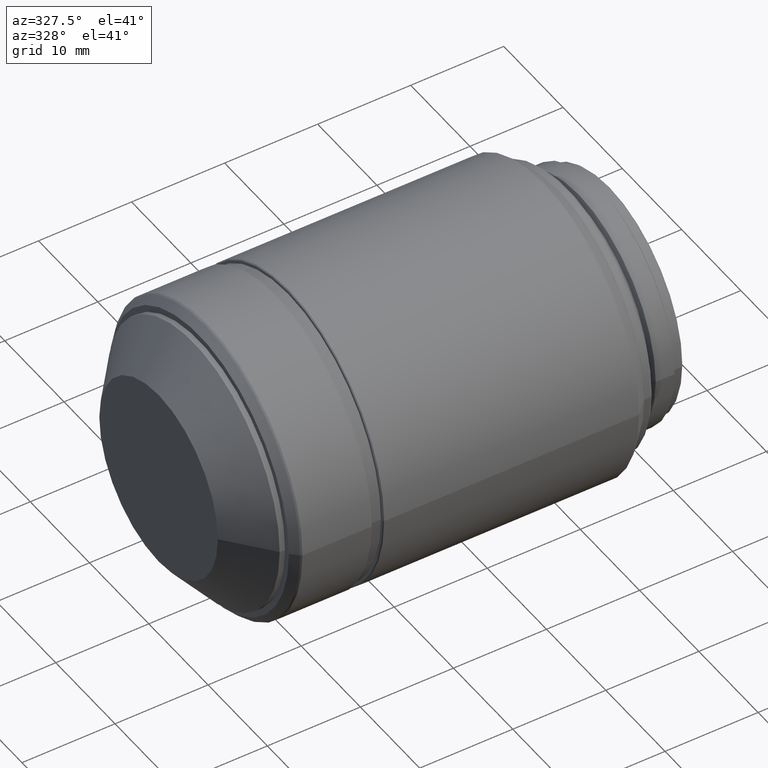
[diagram: clean part render]
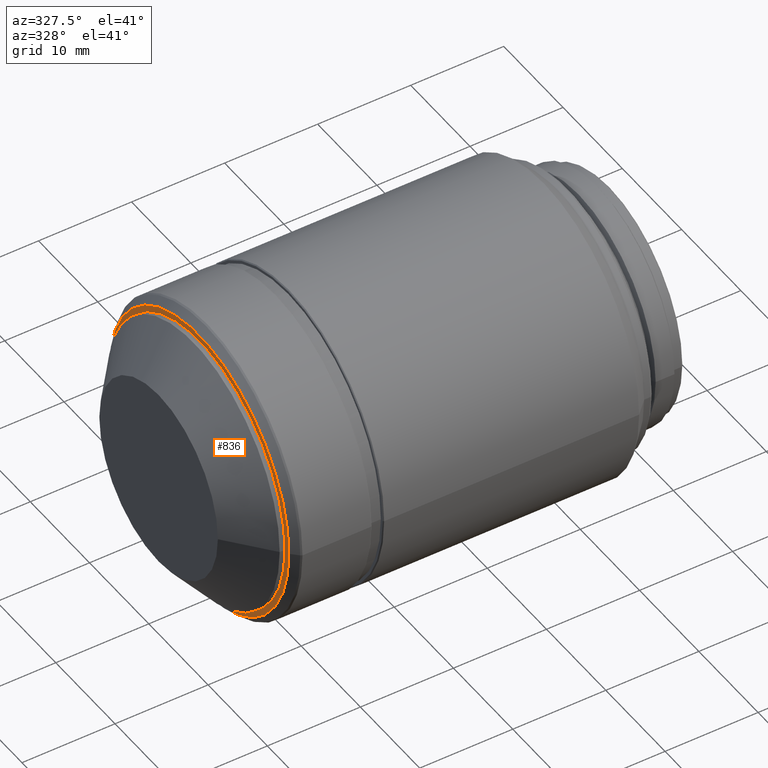
[diagram: same view with one face highlighted and labeled with its STEP entity id]
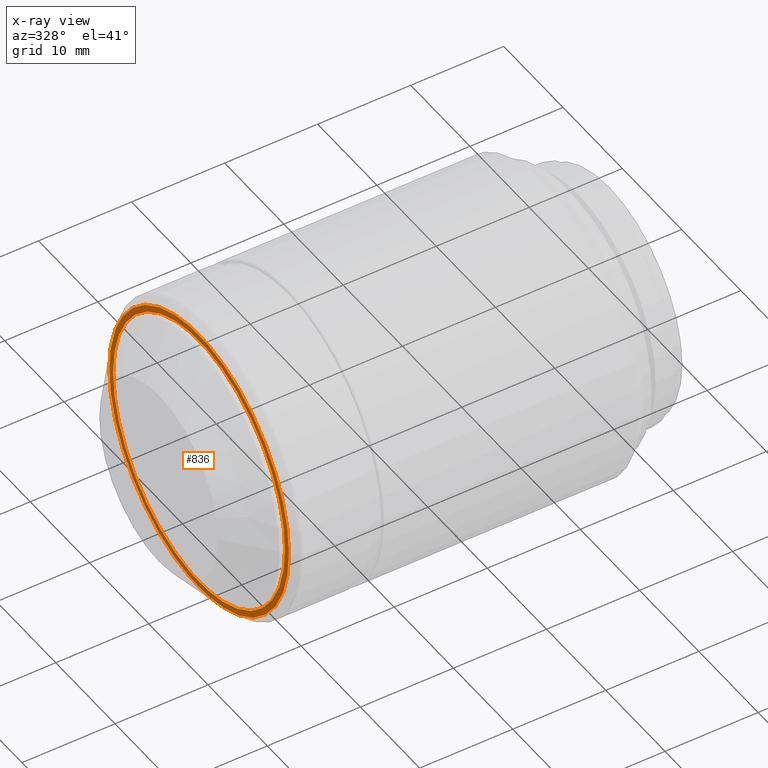
[diagram: x-ray of the same camera — body ghosted, the highlighted face saturated]
A machine part, auxiliary view. The second image highlights one B-rep face of the part: STEP entity #836.
The next image is the same camera in x-ray: the body ghosted, the highlighted face saturated — about 28% of this face is hidden behind the body in this view.
In plain terms, the highlighted planar face has unit normal (-1, 0, 0).
Its self-contained STEP definition (entity closure, byte-faithful):
#14 = AXIS2_PLACEMENT_3D ( 'NONE', #1068, #1272, #1280 ) ;
#71 = ORIENTED_EDGE ( 'NONE', *, *, #309, .T. ) ;
#94 = DIRECTION ( 'NONE',  ( 1.000000000000000000, 0.000000000000000000, 0.000000000000000000 ) ) ;
#196 = DIRECTION ( 'NONE',  ( 1.000000000000000000, 0.000000000000000000, 0.000000000000000000 ) ) ;
#200 = ORIENTED_EDGE ( 'NONE', *, *, #246, .T. ) ;
#246 = EDGE_CURVE ( 'NONE', #266, #1344, #644, .T. ) ;
#248 = CARTESIAN_POINT ( 'NONE',  ( 5.298772000000000482, 0.000000000000000000, 0.000000000000000000 ) ) ;
#266 = VERTEX_POINT ( 'NONE', #975 ) ;
#282 = CARTESIAN_POINT ( 'NONE',  ( 5.298772000000000482, -1.775737858763660240E-15, -14.50000000000000000 ) ) ;
#294 = CARTESIAN_POINT ( 'NONE',  ( 5.298772000000000482, -1.855339900708240019E-15, -15.15000000000000036 ) ) ;
#309 = EDGE_CURVE ( 'NONE', #1344, #266, #438, .T. ) ;
#321 = AXIS2_PLACEMENT_3D ( 'NONE', #1061, #94, #641 ) ;
#386 = CIRCLE ( 'NONE', #321, 15.15000000000000036 ) ;
#438 = CIRCLE ( 'NONE', #1178, 14.50000000000000000 ) ;
#505 = FACE_BOUND ( 'NONE', #533, .T. ) ;
#514 = DIRECTION ( 'NONE',  ( 1.000000000000000000, 0.000000000000000000, 0.000000000000000000 ) ) ;
#520 = CARTESIAN_POINT ( 'NONE',  ( 5.298772000000000482, 0.000000000000000000, 0.000000000000000000 ) ) ;
#533 = EDGE_LOOP ( 'NONE', ( #71, #200 ) ) ;
#570 = CARTESIAN_POINT ( 'NONE',  ( 5.298772000000000482, 3.710679801416479249E-15, 15.15000000000000036 ) ) ;
#641 = DIRECTION ( 'NONE',  ( 0.000000000000000000, 1.224646799147350002E-16, 1.000000000000000000 ) ) ;
#644 = CIRCLE ( 'NONE', #844, 14.50000000000000000 ) ;
#647 = CARTESIAN_POINT ( 'NONE',  ( 5.298772000000000482, 0.000000000000000000, 0.000000000000000000 ) ) ;
#836 = ADVANCED_FACE ( 'NONE', ( #1384, #505 ), #1053, .T. ) ;
#844 = AXIS2_PLACEMENT_3D ( 'NONE', #647, #514, #1070 ) ;
#846 = DIRECTION ( 'NONE',  ( 0.000000000000000000, 1.224646799147350002E-16, 1.000000000000000000 ) ) ;
#898 = VERTEX_POINT ( 'NONE', #294 ) ;
#910 = AXIS2_PLACEMENT_3D ( 'NONE', #520, #196, #846 ) ;
#915 = EDGE_CURVE ( 'NONE', #898, #1092, #987, .T. ) ;
#921 = ORIENTED_EDGE ( 'NONE', *, *, #1331, .F. ) ;
#975 = CARTESIAN_POINT ( 'NONE',  ( 5.298772000000000482, 3.551475717527319691E-15, 14.50000000000000000 ) ) ;
#987 = CIRCLE ( 'NONE', #910, 15.15000000000000036 ) ;
#1053 = PLANE ( 'NONE',  #14 ) ;
#1061 = CARTESIAN_POINT ( 'NONE',  ( 5.298772000000000482, 0.000000000000000000, 0.000000000000000000 ) ) ;
#1068 = CARTESIAN_POINT ( 'NONE',  ( 5.298772000000000482, 1.815538879735949834E-15, 14.82499999999999929 ) ) ;
#1070 = DIRECTION ( 'NONE',  ( 0.000000000000000000, 1.224646799147350002E-16, 1.000000000000000000 ) ) ;
#1092 = VERTEX_POINT ( 'NONE', #570 ) ;
#1112 = DIRECTION ( 'NONE',  ( 1.000000000000000000, 0.000000000000000000, 0.000000000000000000 ) ) ;
#1178 = AXIS2_PLACEMENT_3D ( 'NONE', #248, #1112, #1203 ) ;
#1203 = DIRECTION ( 'NONE',  ( 0.000000000000000000, 1.224646799147350002E-16, 1.000000000000000000 ) ) ;
#1252 = ORIENTED_EDGE ( 'NONE', *, *, #915, .F. ) ;
#1272 = DIRECTION ( 'NONE',  ( -1.000000000000000000, 0.000000000000000000, 0.000000000000000000 ) ) ;
#1280 = DIRECTION ( 'NONE',  ( 0.000000000000000000, 0.000000000000000000, 1.000000000000000000 ) ) ;
#1330 = EDGE_LOOP ( 'NONE', ( #1252, #921 ) ) ;
#1331 = EDGE_CURVE ( 'NONE', #1092, #898, #386, .T. ) ;
#1344 = VERTEX_POINT ( 'NONE', #282 ) ;
#1384 = FACE_OUTER_BOUND ( 'NONE', #1330, .T. ) ;